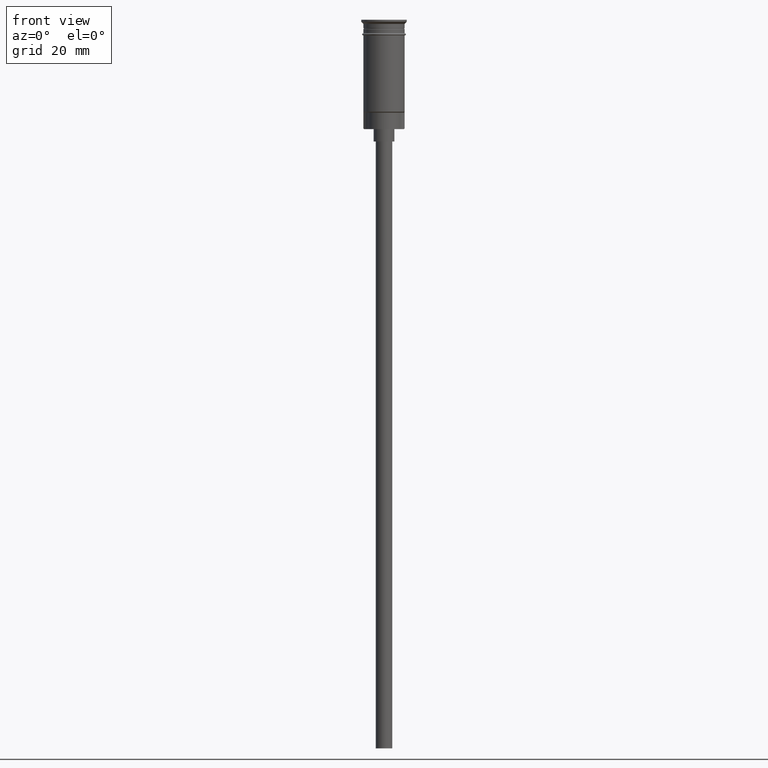
[diagram: clean part render]
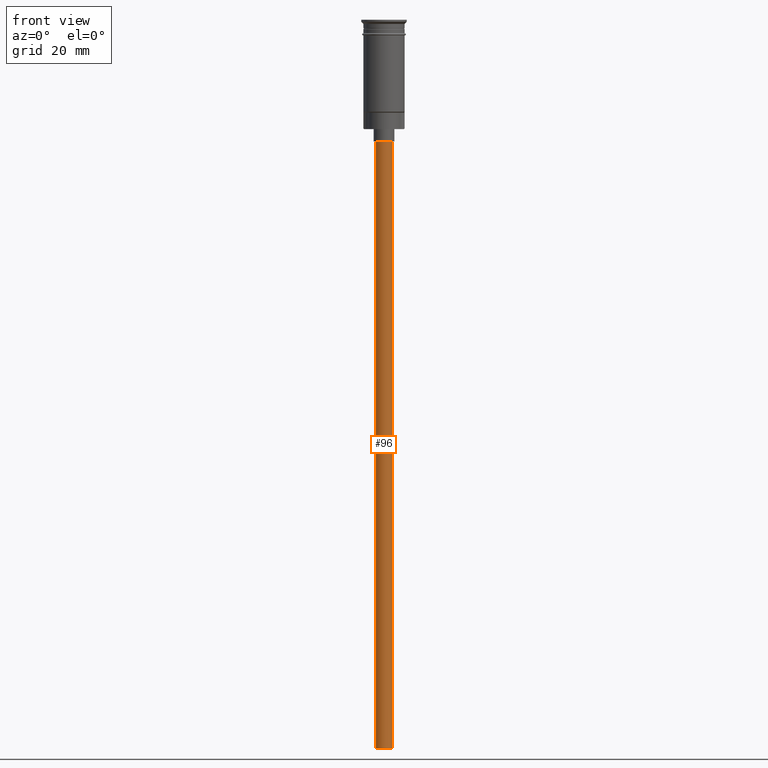
[diagram: same view with one face highlighted and labeled with its STEP entity id]
A machine part, front view. The second image highlights one B-rep face of the part: STEP entity #96.
In plain terms, the highlighted cylindrical surface (edge-blend (fillet) strip) has radius 2 mm, axis along (-0, -0, 1).
Its self-contained STEP definition (entity closure, byte-faithful):
#32 = VERTEX_POINT ( 'NONE', #608 ) ;
#68 = VERTEX_POINT ( 'NONE', #1234 ) ;
#96 = ADVANCED_FACE ( 'NONE', ( #1221 ), #1099, .T. ) ;
#143 = EDGE_CURVE ( 'NONE', #1592, #207, #865, .T. ) ;
#146 = ORIENTED_EDGE ( 'NONE', *, *, #1005, .F. ) ;
#187 = AXIS2_PLACEMENT_3D ( 'NONE', #599, #616, #371 ) ;
#207 = VERTEX_POINT ( 'NONE', #640 ) ;
#232 = EDGE_CURVE ( 'NONE', #68, #32, #1012, .T. ) ;
#254 = DIRECTION ( 'NONE',  ( -0.000000000000000000, -0.000000000000000000, 1.000000000000000000 ) ) ;
#271 = ORIENTED_EDGE ( 'NONE', *, *, #232, .F. ) ;
#371 = DIRECTION ( 'NONE',  ( 1.000000000000000000, 0.000000000000000000, 0.000000000000000000 ) ) ;
#433 = DIRECTION ( 'NONE',  ( 0.000000000000000000, 0.000000000000000000, -1.000000000000000000 ) ) ;
#494 = CARTESIAN_POINT ( 'NONE',  ( 0.000000000000000000, 0.000000000000000000, -29.50000000000000000 ) ) ;
#599 = CARTESIAN_POINT ( 'NONE',  ( 0.000000000000000000, 0.000000000000000000, -176.5000000000000000 ) ) ;
#608 = CARTESIAN_POINT ( 'NONE',  ( -2.000000000000000000, 2.449293598294706414E-16, -176.5000000000000000 ) ) ;
#616 = DIRECTION ( 'NONE',  ( -0.000000000000000000, -0.000000000000000000, 1.000000000000000000 ) ) ;
#640 = CARTESIAN_POINT ( 'NONE',  ( -2.000000000000000000, 2.449293598294706414E-16, -29.50000000000000000 ) ) ;
#741 = ORIENTED_EDGE ( 'NONE', *, *, #1116, .T. ) ;
#750 = LINE ( 'NONE', #873, #870 ) ;
#846 = VECTOR ( 'NONE', #1506, 1000.000000000000000 ) ;
#865 = CIRCLE ( 'NONE', #1201, 2.000000000000000000 ) ;
#870 = VECTOR ( 'NONE', #254, 1000.000000000000000 ) ;
#873 = CARTESIAN_POINT ( 'NONE',  ( -2.000000000000000000, 2.449293598294706414E-16, -176.5000000000000000 ) ) ;
#883 = CARTESIAN_POINT ( 'NONE',  ( 2.000000000000000000, 0.000000000000000000, -176.5000000000000000 ) ) ;
#999 = DIRECTION ( 'NONE',  ( 0.000000000000000000, 0.000000000000000000, -1.000000000000000000 ) ) ;
#1005 = EDGE_CURVE ( 'NONE', #32, #207, #750, .T. ) ;
#1012 = CIRCLE ( 'NONE', #1226, 2.000000000000000000 ) ;
#1055 = DIRECTION ( 'NONE',  ( -1.000000000000000000, 0.000000000000000000, 0.000000000000000000 ) ) ;
#1070 = CARTESIAN_POINT ( 'NONE',  ( 0.000000000000000000, 0.000000000000000000, -176.5000000000000000 ) ) ;
#1099 = CYLINDRICAL_SURFACE ( 'NONE', #187, 2.000000000000000000 ) ;
#1116 = EDGE_CURVE ( 'NONE', #68, #1592, #1250, .T. ) ;
#1131 = CARTESIAN_POINT ( 'NONE',  ( 2.000000000000000000, 0.000000000000000000, -29.50000000000000000 ) ) ;
#1198 = EDGE_LOOP ( 'NONE', ( #146, #271, #741, #1471 ) ) ;
#1201 = AXIS2_PLACEMENT_3D ( 'NONE', #494, #999, #1485 ) ;
#1221 = FACE_OUTER_BOUND ( 'NONE', #1198, .T. ) ;
#1226 = AXIS2_PLACEMENT_3D ( 'NONE', #1070, #433, #1055 ) ;
#1234 = CARTESIAN_POINT ( 'NONE',  ( 2.000000000000000000, 0.000000000000000000, -176.5000000000000000 ) ) ;
#1250 = LINE ( 'NONE', #883, #846 ) ;
#1471 = ORIENTED_EDGE ( 'NONE', *, *, #143, .T. ) ;
#1485 = DIRECTION ( 'NONE',  ( -1.000000000000000000, 0.000000000000000000, 0.000000000000000000 ) ) ;
#1506 = DIRECTION ( 'NONE',  ( -0.000000000000000000, -0.000000000000000000, 1.000000000000000000 ) ) ;
#1592 = VERTEX_POINT ( 'NONE', #1131 ) ;